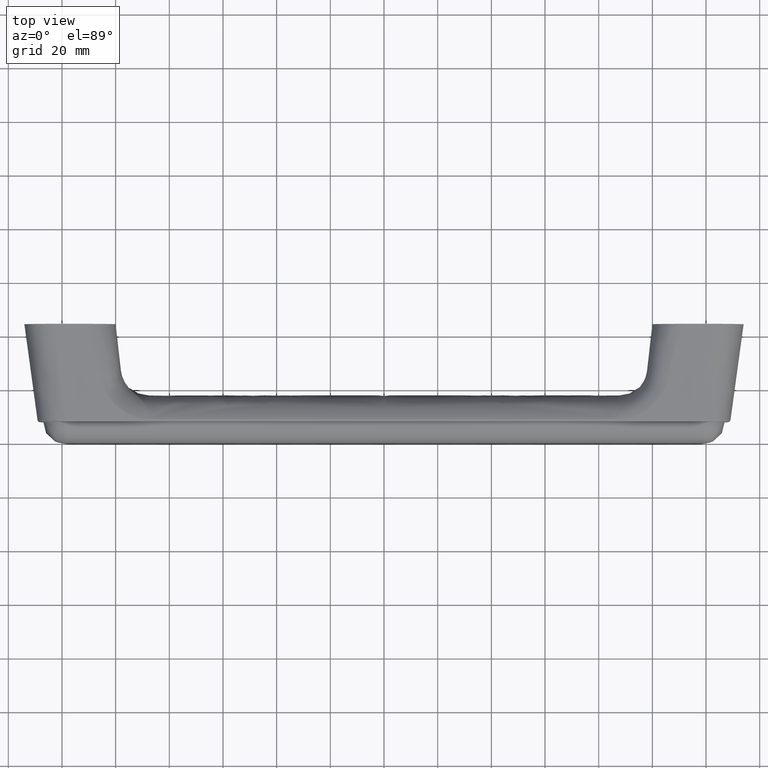
[diagram: clean part render]
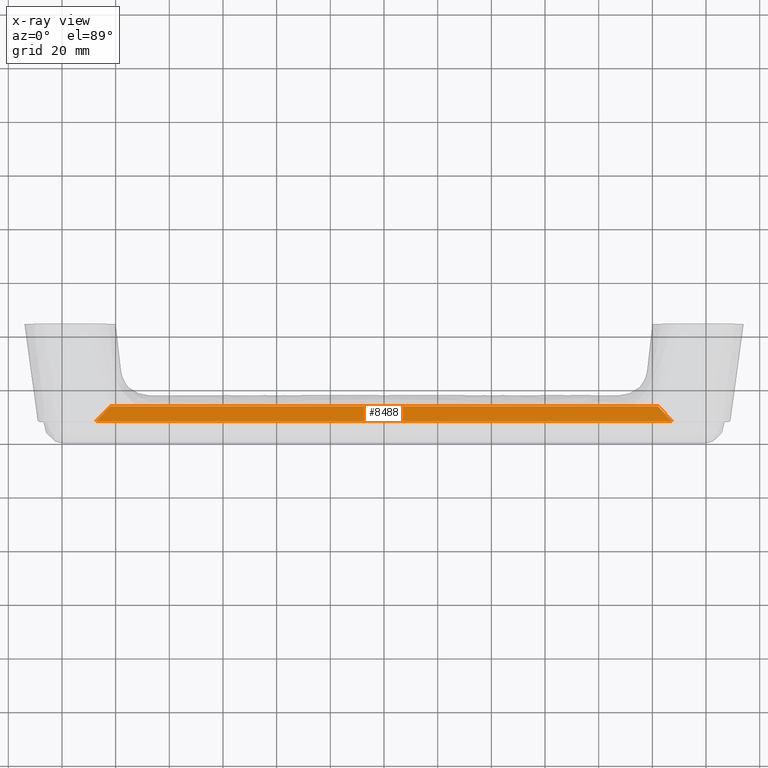
[diagram: x-ray — body ghosted, one internal face saturated and labeled with its STEP entity id]
A machine part, top view, then the same camera in x-ray: the body is ghosted and one INTERNAL B-rep face — a face not visible from any outside direction — is saturated and labeled: STEP entity #8488.
In plain terms, the highlighted face is a freeform B-spline surface patch.
Its self-contained STEP definition (entity closure, byte-faithful):
#3722=CARTESIAN_POINT('',(107.529411764706000,-7.986147175753940,-8.470588235294320));
#3723=VERTEX_POINT('',#3722);
#3753=CARTESIAN_POINT('',(-107.529411764706000,-7.986147175753948,-8.470588235294329));
#3754=VERTEX_POINT('',#3753);
#3755=CARTESIAN_POINT('',(-107.529411764706000,-7.986147175753948,-8.470588235294329));
#3756=CARTESIAN_POINT('',(107.529411764706000,-7.986147175753940,-8.470588235294320));
#3757=QUASI_UNIFORM_CURVE('',1,(#3755,#3756),.UNSPECIFIED.,.F.,.U.);
#3758=EDGE_CURVE('',#3754,#3723,#3757,.T.);
#4035=CARTESIAN_POINT('',(102.0,-5.291502622129180,-14.000000000000201));
#4036=VERTEX_POINT('',#4035);
#4050=CARTESIAN_POINT('',(102.0,-5.291502622129180,-14.000000000000220));
#4051=CARTESIAN_POINT('',(104.203620166005410,-7.790173026399398,-11.796379833994807));
#4052=CARTESIAN_POINT('',(107.529411764705800,-7.986147175753940,-8.470588235294374));
#4060=(BOUNDED_CURVE()B_SPLINE_CURVE(2,(#4050,#4051,#4052),.UNSPECIFIED.,.F.,.U.)CURVE()GEOMETRIC_REPRESENTATION_ITEM()QUASI_UNIFORM_CURVE()RATIONAL_B_SPLINE_CURVE((1.0,0.923149534766107,1.0))REPRESENTATION_ITEM(''));
#4061=EDGE_CURVE('',#4036,#3723,#4060,.T.);
#4265=CARTESIAN_POINT('',(-102.0,-5.291502622129180,-14.000000000000201));
#4266=VERTEX_POINT('',#4265);
#4267=CARTESIAN_POINT('',(-107.529411764705700,-7.986147175753948,-8.470588235294466));
#4268=CARTESIAN_POINT('',(-104.203620166005360,-7.790173026399373,-11.796379833994852));
#4269=CARTESIAN_POINT('',(-102.0,-5.291502622129181,-14.000000000000229));
#4277=(BOUNDED_CURVE()B_SPLINE_CURVE(2,(#4267,#4268,#4269),.UNSPECIFIED.,.F.,.U.)CURVE()GEOMETRIC_REPRESENTATION_ITEM()QUASI_UNIFORM_CURVE()RATIONAL_B_SPLINE_CURVE((1.0,0.923149534766108,1.0))REPRESENTATION_ITEM(''));
#4278=EDGE_CURVE('',#3754,#4266,#4277,.T.);
#4513=CARTESIAN_POINT('',(102.0,-5.291502622129180,-14.000000000000201));
#4514=CARTESIAN_POINT('',(-102.0,-5.291502622129180,-14.000000000000201));
#4515=QUASI_UNIFORM_CURVE('',1,(#4513,#4514),.UNSPECIFIED.,.F.,.U.);
#4516=EDGE_CURVE('',#4036,#4266,#4515,.T.);
#8468=CARTESIAN_POINT('',(112.905882352941300,-7.995729086484879,-8.261374014660508));
#8469=CARTESIAN_POINT('',(-113.040294117647210,-7.995729086484879,-8.261374014660508));
#8470=CARTESIAN_POINT('',(112.905882352941320,-7.876842563053394,-11.898248302365033));
#8471=CARTESIAN_POINT('',(-113.040294117647240,-7.876842563053394,-11.898248302365033));
#8472=CARTESIAN_POINT('',(112.905882352941280,-5.057390332045010,-14.198612992383060));
#8473=CARTESIAN_POINT('',(-113.040294117647190,-5.057390332045010,-14.198612992383060));
#8481=(BOUNDED_SURFACE()B_SPLINE_SURFACE(1,2,((#8468,#8470,#8472),(#8469,#8471,#8473)),.UNSPECIFIED.,.F.,.F.,.U.)B_SPLINE_SURFACE_WITH_KNOTS((2,2),(3,3),(0.0,225.946176470588510),(0.0,6.935743437595444),.UNSPECIFIED.)GEOMETRIC_REPRESENTATION_ITEM()RATIONAL_B_SPLINE_SURFACE(((1.0,0.908398638113624,0.995911617409927),(1.0,0.908398638113624,0.995911617409927)))REPRESENTATION_ITEM('')SURFACE());
#8482=ORIENTED_EDGE('',*,*,#4278,.F.);
#8483=ORIENTED_EDGE('',*,*,#3758,.T.);
#8484=ORIENTED_EDGE('',*,*,#4061,.F.);
#8485=ORIENTED_EDGE('',*,*,#4516,.T.);
#8486=EDGE_LOOP('',(#8482,#8483,#8484,#8485));
#8487=FACE_OUTER_BOUND('',#8486,.T.);
#8488=ADVANCED_FACE('',(#8487),#8481,.F.);